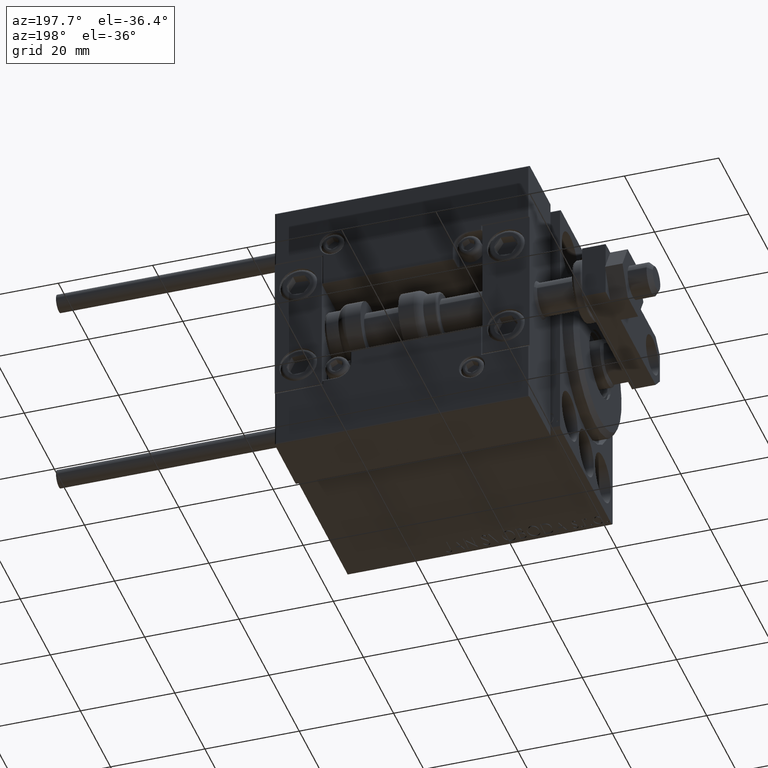
[diagram: clean part render]
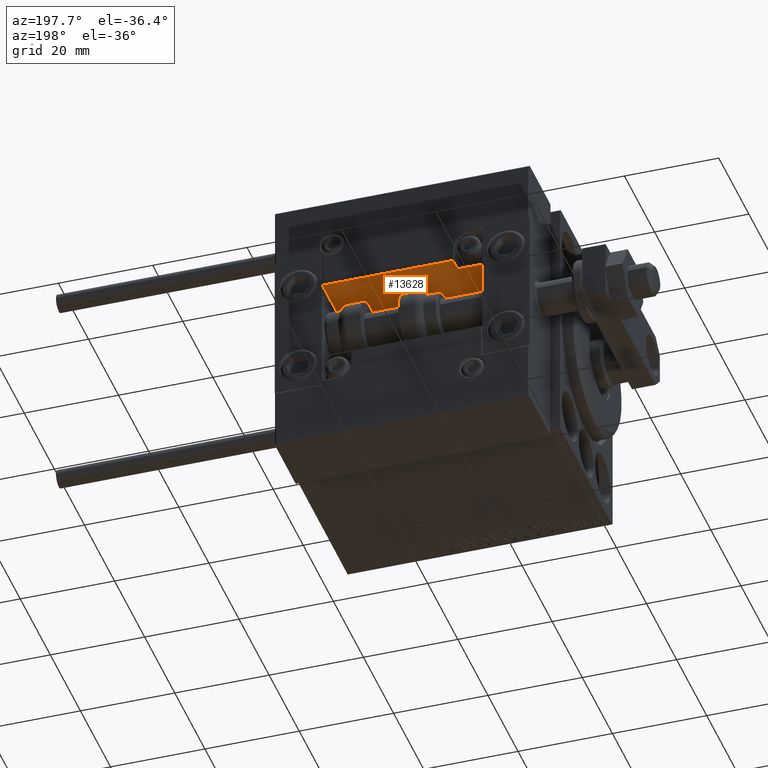
[diagram: same view with one face highlighted and labeled with its STEP entity id]
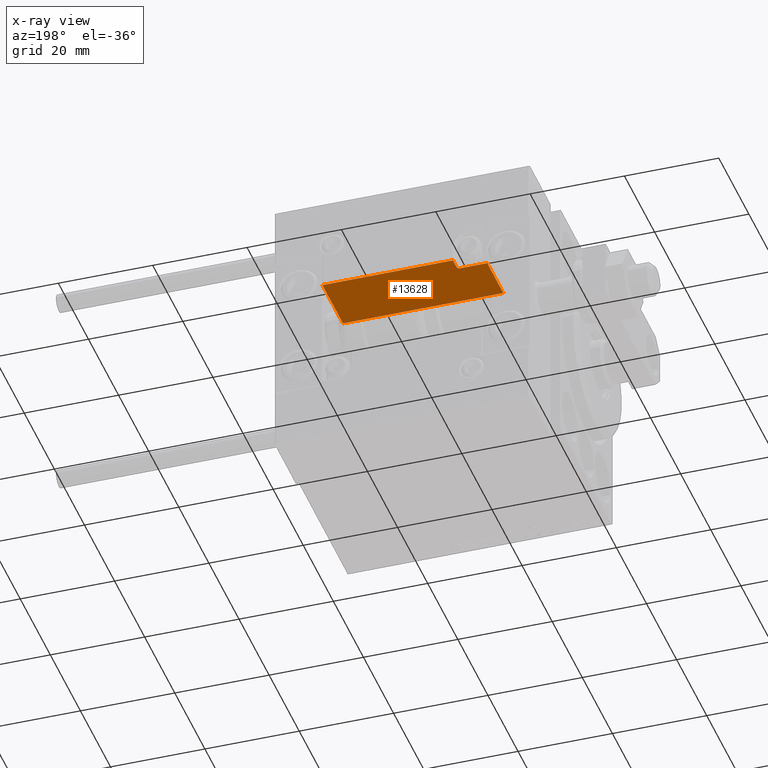
[diagram: x-ray of the same camera — body ghosted, the highlighted face saturated]
A machine part, auxiliary view. The second image highlights one B-rep face of the part: STEP entity #13628.
The next image is the same camera in x-ray: the body ghosted, the highlighted face saturated — about 4% of this face is hidden behind the body in this view.
In plain terms, the highlighted planar face has unit normal (0, 0, 1).
Its self-contained STEP definition (entity closure, byte-faithful):
#1137 = CARTESIAN_POINT ( 'NONE',  ( 10.70000000000000107, 3.252606517456513302E-15, 13.70000000000000107 ) ) ;
#2176 = AXIS2_PLACEMENT_3D ( 'NONE', #12174, #7355, #43589 ) ;
#2317 = VECTOR ( 'NONE', #41157, 1000.000000000000000 ) ;
#2847 = CARTESIAN_POINT ( 'NONE',  ( 10.70000000000000107, 3.252606517456513302E-15, 11.29999999999999893 ) ) ;
#3206 = LINE ( 'NONE', #18677, #18193 ) ;
#3689 = LINE ( 'NONE', #7255, #25363 ) ;
#4380 = CARTESIAN_POINT ( 'NONE',  ( -16.99999999999999289, 3.252606517456513302E-15, 14.00000000000000000 ) ) ;
#4709 = LINE ( 'NONE', #32373, #14978 ) ;
#4973 = DIRECTION ( 'NONE',  ( 1.000000000000000000, 0.000000000000000000, 0.000000000000000000 ) ) ;
#5064 = DIRECTION ( 'NONE',  ( -1.000000000000000000, 0.000000000000000000, -0.000000000000000000 ) ) ;
#5263 = FACE_OUTER_BOUND ( 'NONE', #18896, .T. ) ;
#7117 = VERTEX_POINT ( 'NONE', #1137 ) ;
#7255 = CARTESIAN_POINT ( 'NONE',  ( 10.70000000000000107, 3.252606517456513302E-15, 14.00000000000000000 ) ) ;
#7355 = DIRECTION ( 'NONE',  ( -0.000000000000000000, -1.000000000000000000, -0.000000000000000000 ) ) ;
#8203 = LINE ( 'NONE', #4380, #19918 ) ;
#8344 = CARTESIAN_POINT ( 'NONE',  ( 16.99999999999999289, 3.252606517456513302E-15, 10.69999999999999929 ) ) ;
#12174 = CARTESIAN_POINT ( 'NONE',  ( 11.29999999999999893, 3.252606517456513302E-15, 11.29999999999999893 ) ) ;
#12566 = CARTESIAN_POINT ( 'NONE',  ( 16.99999999999999289, 3.252606517456513302E-15, 0.000000000000000000 ) ) ;
#13423 = VERTEX_POINT ( 'NONE', #14689 ) ;
#13628 = ADVANCED_FACE ( 'NONE', ( #5263 ), #32425, .F. ) ;
#14011 = AXIS2_PLACEMENT_3D ( 'NONE', #47864, #28614, #44061 ) ;
#14689 = CARTESIAN_POINT ( 'NONE',  ( 11.29999999999999893, 3.252606517456513302E-15, 10.69999999999999929 ) ) ;
#14848 = EDGE_CURVE ( 'NONE', #20221, #7117, #3689, .T. ) ;
#14978 = VECTOR ( 'NONE', #4973, 1000.000000000000000 ) ;
#15919 = ORIENTED_EDGE ( 'NONE', *, *, #39529, .T. ) ;
#16296 = VERTEX_POINT ( 'NONE', #8344 ) ;
#17092 = ORIENTED_EDGE ( 'NONE', *, *, #28201, .F. ) ;
#17403 = ORIENTED_EDGE ( 'NONE', *, *, #14848, .T. ) ;
#18193 = VECTOR ( 'NONE', #26530, 1000.000000000000000 ) ;
#18677 = CARTESIAN_POINT ( 'NONE',  ( 11.00000000000000000, 3.252606517456513302E-15, 10.69999999999999929 ) ) ;
#18896 = EDGE_LOOP ( 'NONE', ( #22129, #24859, #17092, #17403, #15919, #29175, #28561 ) ) ;
#19164 = DIRECTION ( 'NONE',  ( 0.000000000000000000, -0.000000000000000000, 1.000000000000000000 ) ) ;
#19353 = DIRECTION ( 'NONE',  ( -0.000000000000000000, -0.000000000000000000, -1.000000000000000000 ) ) ;
#19918 = VECTOR ( 'NONE', #19353, 1000.000000000000000 ) ;
#20221 = VERTEX_POINT ( 'NONE', #2847 ) ;
#22129 = ORIENTED_EDGE ( 'NONE', *, *, #35162, .F. ) ;
#22579 = EDGE_CURVE ( 'NONE', #16296, #13423, #3206, .T. ) ;
#22664 = EDGE_CURVE ( 'NONE', #27752, #24784, #4709, .T. ) ;
#24784 = VERTEX_POINT ( 'NONE', #12566 ) ;
#24859 = ORIENTED_EDGE ( 'NONE', *, *, #22579, .T. ) ;
#25363 = VECTOR ( 'NONE', #19164, 1000.000000000000000 ) ;
#25778 = EDGE_CURVE ( 'NONE', #42030, #27752, #8203, .T. ) ;
#26530 = DIRECTION ( 'NONE',  ( -1.000000000000000000, 0.000000000000000000, -0.000000000000000000 ) ) ;
#27752 = VERTEX_POINT ( 'NONE', #43271 ) ;
#28201 = EDGE_CURVE ( 'NONE', #20221, #13423, #41841, .T. ) ;
#28561 = ORIENTED_EDGE ( 'NONE', *, *, #22664, .T. ) ;
#28614 = DIRECTION ( 'NONE',  ( 0.000000000000000000, 1.000000000000000000, 0.000000000000000000 ) ) ;
#28896 = LINE ( 'NONE', #36252, #36511 ) ;
#28975 = CARTESIAN_POINT ( 'NONE',  ( -16.99999999999999289, 3.252606517456513302E-15, 13.70000000000000107 ) ) ;
#29175 = ORIENTED_EDGE ( 'NONE', *, *, #25778, .T. ) ;
#30260 = CARTESIAN_POINT ( 'NONE',  ( 16.99999999999999289, 3.252606517456513302E-15, 14.00000000000000000 ) ) ;
#32373 = CARTESIAN_POINT ( 'NONE',  ( -16.99999999999999289, 3.252606517456513302E-15, 0.000000000000000000 ) ) ;
#32425 = PLANE ( 'NONE',  #14011 ) ;
#35162 = EDGE_CURVE ( 'NONE', #16296, #24784, #49006, .T. ) ;
#36252 = CARTESIAN_POINT ( 'NONE',  ( -16.99999999999999289, 3.252606517456513302E-15, 13.70000000000000107 ) ) ;
#36511 = VECTOR ( 'NONE', #5064, 1000.000000000000000 ) ;
#39529 = EDGE_CURVE ( 'NONE', #7117, #42030, #28896, .T. ) ;
#41157 = DIRECTION ( 'NONE',  ( -0.000000000000000000, -0.000000000000000000, -1.000000000000000000 ) ) ;
#41841 = CIRCLE ( 'NONE', #2176, 0.5999999999999998668 ) ;
#42030 = VERTEX_POINT ( 'NONE', #28975 ) ;
#43271 = CARTESIAN_POINT ( 'NONE',  ( -16.99999999999999289, 3.252606517456513302E-15, 0.000000000000000000 ) ) ;
#43589 = DIRECTION ( 'NONE',  ( 0.000000000000000000, 0.000000000000000000, 1.000000000000000000 ) ) ;
#44061 = DIRECTION ( 'NONE',  ( 0.000000000000000000, -0.000000000000000000, 1.000000000000000000 ) ) ;
#47864 = CARTESIAN_POINT ( 'NONE',  ( -16.99999999999999289, 3.252606517456513302E-15, 14.00000000000000000 ) ) ;
#49006 = LINE ( 'NONE', #30260, #2317 ) ;